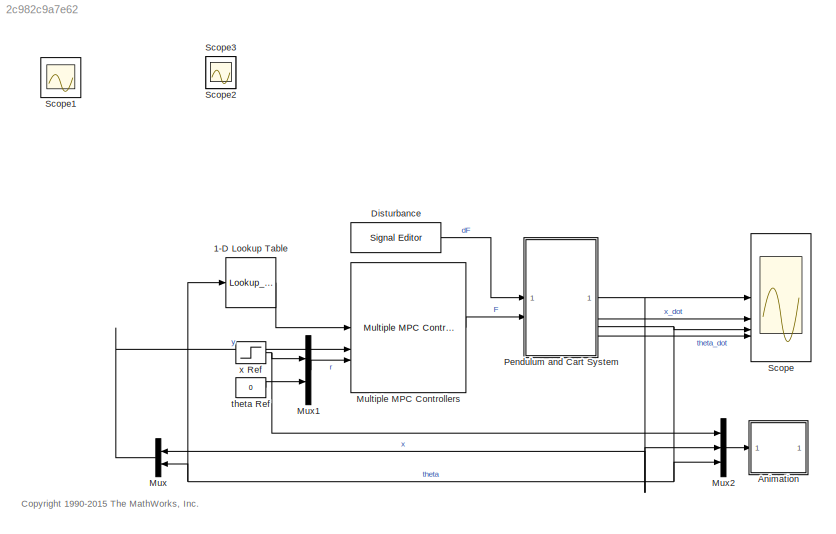
MODEL slx_2c982c9a7e62
KIND model
CONFIG AbsTol = auto
CONFIG EnableMultiTasking = on
CONFIG FixedStep = auto
CONFIG MaxStep = 1e-3
CONFIG MinStep = auto
CONFIG PreLoadFcn = % Model parameters\nmCart = 1;\nmPend = 1;\ng = 9.81;\nL = 0.5; \nKd = 10;\n\n% Initial Conditions\ntheta0 = 0;
CONFIG RelTol = 1e-3
CONFIG SampleTimeConstraint = Unconstrained
CONFIG SolverName = ode15s
CONFIG StartTime = 0.0
CONFIG StopTime = 30
BLOCK [Lookup_n-D] 1-D Lookup Table
  BreakpointsForDimension1 = angles
  InputPortMap = u0
  InternalRulePriority = Speed
  InterpMethod = Nearest
  NumberOfTableDimensions = 1
  RndMeth = Simplest
  Table = 1:length(angles)
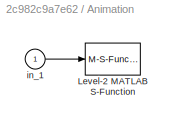
BLOCK [SubSystem] Animation
BLOCK [M-S-Function] Animation/Level-2 MATLAB S-Function
  FunctionName = pendcartAnimation
  Parameters = RefBlock
BLOCK [Inport] Animation/in_1
BLOCK [Reference] Disturbance  REF=SignalEditorBlockLib/Signal Editor
  LibrarySourceBlock = simulink/Sources/Signal Editor
  SourceBlock = SignalEditorBlockLib/Signal Editor
  SourceType = SignalEditor
  UserDataPersistent = on
BLOCK [Reference] Multiple MPC Controllers  REF=mpclib/Multiple MPC Controllers  (lib defined in mdl_ae329e0e0455)
  SourceBlock = mpclib/Multiple MPC Controllers
  SourceType = Multiple MPC
BLOCK [Mux] Mux
  DisplayOption = bar
  Inputs = 2
  NameLocation = top
BLOCK [Mux] Mux1
  DisplayOption = bar
  Inputs = 2
BLOCK [Mux] Mux2
  DisplayOption = bar
  Inputs = 3
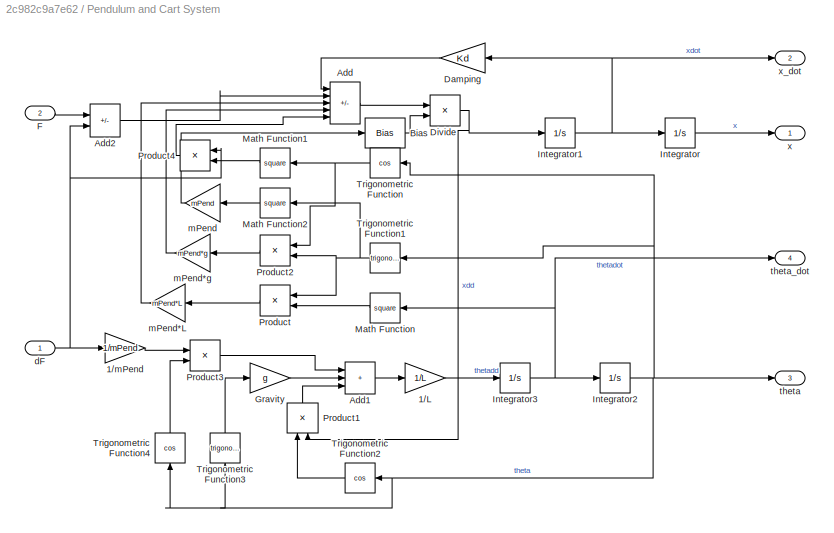
BLOCK [SubSystem] Pendulum and Cart System
BLOCK [Gain] Pendulum and Cart System/1//L
  Gain = 1/L
BLOCK [Gain] Pendulum and Cart System/1//mPend
  Gain = 1/mPend
  NameLocation = top
BLOCK [Sum] Pendulum and Cart System/Add
  IconShape = rectangular
  Inputs = -+-++
BLOCK [Sum] Pendulum and Cart System/Add1
  IconShape = rectangular
  Inputs = +++
BLOCK [Sum] Pendulum and Cart System/Add2
  IconShape = rectangular
  Inputs = +-
BLOCK [Bias] Pendulum and Cart System/Bias
  Bias = mCart
  SaturateOnIntegerOverflow = off
BLOCK [Gain] Pendulum and Cart System/Damping
  Gain = Kd
  NameLocation = top
BLOCK [Product] Pendulum and Cart System/Divide
  Inputs = */
BLOCK [Inport] Pendulum and Cart System/F
  Port = 2
BLOCK [Gain] Pendulum and Cart System/Gravity
  Gain = g
BLOCK [Integrator] Pendulum and Cart System/Integrator
  ContinuousStateAttributes = 'x'
BLOCK [Integrator] Pendulum and Cart System/Integrator1
  ContinuousStateAttributes = 'xdot'
BLOCK [Integrator] Pendulum and Cart System/Integrator2
  ContinuousStateAttributes = 'theta'
BLOCK [Integrator] Pendulum and Cart System/Integrator3
  ContinuousStateAttributes = 'thetadot'
BLOCK [Math] Pendulum and Cart System/Math Function
  Operator = square
  SignedPower = on
BLOCK [Math] Pendulum and Cart System/Math Function1
  Operator = square
  SignedPower = on
BLOCK [Math] Pendulum and Cart System/Math Function2
  Operator = square
  SignedPower = on
BLOCK [Product] Pendulum and Cart System/Product
  NameLocation = top
BLOCK [Product] Pendulum and Cart System/Product1
  NameLocation = right
BLOCK [Product] Pendulum and Cart System/Product2
  NameLocation = top
BLOCK [Product] Pendulum and Cart System/Product3
BLOCK [Product] Pendulum and Cart System/Product4
  NameLocation = top
BLOCK [Trigonometry] Pendulum and Cart System/Trigonometric Function
  NameLocation = top
  Operator = cos
BLOCK [Trigonometry] Pendulum and Cart System/Trigonometric Function1
  NameLocation = top
BLOCK [Trigonometry] Pendulum and Cart System/Trigonometric Function2
  NameLocation = top
  Operator = cos
BLOCK [Trigonometry] Pendulum and Cart System/Trigonometric Function3
  NameLocation = right
BLOCK [Trigonometry] Pendulum and Cart System/Trigonometric Function4
  NameLocation = right
  Operator = cos
BLOCK [Inport] Pendulum and Cart System/dF
BLOCK [Gain] Pendulum and Cart System/mPend
  Gain = mPend
BLOCK [Gain] Pendulum and Cart System/mPend*L
  Gain = mPend*L
BLOCK [Gain] Pendulum and Cart System/mPend*g
  Gain = mPend*g
BLOCK [Outport] Pendulum and Cart System/theta
  Port = 3
  VectorParamsAs1DForOutWhenUnconnected = off
BLOCK [Outport] Pendulum and Cart System/theta_dot
  Port = 4
  VectorParamsAs1DForOutWhenUnconnected = off
BLOCK [Outport] Pendulum and Cart System/x
  VectorParamsAs1DForOutWhenUnconnected = off
BLOCK [Outport] Pendulum and Cart System/x_dot
  Port = 2
  VectorParamsAs1DForOutWhenUnconnected = off
BLOCK [Scope] Scope
  Floating = off
  NameLocation = top
  NumInputPorts = 4
  ScopeSpecificationString = Simulink.scopes.TimeScopeBlockCfg('CurrentConfiguration', extmgr.ConfigurationSet(extmgr.Configuration('Core','General UI',true),extmgr.Configuration('Core','Source UI',true),extmgr.Configuration('Sources','WiredSimulink',true,'DataLoggingSaveFormat','StructureWithTime','DataLoggingDecimation','1','DataLoggingDecimateData',true),extmgr.Configuration('Visuals','Time Domain',true,'SerializedDisplays...<+3598ch>
BLOCK [Scope] Scope1
  Floating = off
  IOType = viewer
  NumInputPorts = 1
  ScopeSpecificationString = Simulink.scopes.TimeScopeBlockCfg('CurrentConfiguration', extmgr.ConfigurationSet(extmgr.Configuration('Core','General UI',true),extmgr.Configuration('Core','Source UI',true),extmgr.Configuration('Sources','WiredSimulink',true,'DataLoggingMaxPoints','7500','DataLoggingLimitDataPoints',true,'DataLoggingSaveFormat','Array','DataLoggingDecimation','1','DataLoggingDecimateData',true),extmgr.Configurat...<+1709ch>
BLOCK [Scope] Scope2
  Floating = off
  IOType = viewer
  NumInputPorts = 1
  ScopeSpecificationString = Simulink.scopes.TimeScopeBlockCfg('CurrentConfiguration', extmgr.ConfigurationSet(extmgr.Configuration('Core','General UI',true),extmgr.Configuration('Core','Source UI',true),extmgr.Configuration('Sources','WiredSimulink',true,'DataLoggingVariableName','ScopeData1'),extmgr.Configuration('Visuals','Time Domain',true,'SerializedDisplays',{struct('MinYLimReal','-125.00000','MaxYLimReal','125.00000','...<+1447ch>
BLOCK [Scope] Scope3
  Floating = off
  IOType = viewer
  NumInputPorts = 1
  ScopeSpecificationString = Simulink.scopes.TimeScopeBlockCfg('CurrentConfiguration', extmgr.ConfigurationSet(extmgr.Configuration('Core','General UI',true),extmgr.Configuration('Core','Source UI',true),extmgr.Configuration('Sources','WiredSimulink',true,'DataLoggingVariableName','ScopeData2'),extmgr.Configuration('Visuals','Time Domain',true,'SerializedDisplays',{struct('MinYLimReal','0.875','MaxYLimReal','2.125','YLabelRea...<+1430ch>
BLOCK [Constant] theta Ref
  Value = 0
BLOCK [Step] x Ref
  After = 15
  SampleTime = 0
ANNOTATION (root): <copyright redacted>
LINE 1-D Lookup Table:1 -> Multiple MPC Controllers:1
LINE Animation/in_1:1 -> Animation/Level-2 MATLAB S-Function:1
LINE Disturbance:1 -> Pendulum and Cart System:1
LINE Multiple MPC Controllers:1 -> Pendulum and Cart System:2
LINE Mux1:1 -> Multiple MPC Controllers:3
LINE Mux2:1 -> Animation:1
LINE Mux:1 -> Multiple MPC Controllers:2
LINE Pendulum and Cart System/1//L:1 -> Pendulum and Cart System/Integrator3:1
LINE Pendulum and Cart System/1//mPend:1 -> Pendulum and Cart System/Product3:1
LINE Pendulum and Cart System/Add1:1 -> Pendulum and Cart System/1//L:1
LINE Pendulum and Cart System/Add2:1 -> Pendulum and Cart System/Add:2
LINE Pendulum and Cart System/Add:1 -> Pendulum and Cart System/Divide:1
LINE Pendulum and Cart System/Bias:1 -> Pendulum and Cart System/Divide:2
LINE Pendulum and Cart System/Damping:1 -> Pendulum and Cart System/Add:1
NET Pendulum and Cart System/Divide:1 -> Pendulum and Cart System/Integrator1:1, Pendulum and Cart System/Product1:2
LINE Pendulum and Cart System/F:1 -> Pendulum and Cart System/Add2:1
LINE Pendulum and Cart System/Gravity:1 -> Pendulum and Cart System/Add1:2
NET Pendulum and Cart System/Integrator1:1 -> Pendulum and Cart System/Damping:1, Pendulum and Cart System/Integrator:1, Pendulum and Cart System/x_dot:1
NET Pendulum and Cart System/Integrator2:1 -> Pendulum and Cart System/Trigonometric Function1:1, Pendulum and Cart System/Trigonometric Function2:1, Pendulum and Cart System/Trigonometric Function3:1, Pendulum and Cart System/Trigonometric Function4:1, Pendulum and Cart System/Trigonometric Function:1, Pendulum and Cart System/theta:1
NET Pendulum and Cart System/Integrator3:1 -> Pendulum and Cart System/Integrator2:1, Pendulum and Cart System/Math Function:1, Pendulum and Cart System/theta_dot:1
LINE Pendulum and Cart System/Integrator:1 -> Pendulum and Cart System/x:1
LINE Pendulum and Cart System/Math Function1:1 -> Pendulum and Cart System/Product4:2
LINE Pendulum and Cart System/Math Function2:1 -> Pendulum and Cart System/mPend:1
LINE Pendulum and Cart System/Math Function:1 -> Pendulum and Cart System/Product:2
LINE Pendulum and Cart System/Product1:1 -> Pendulum and Cart System/Add1:3
LINE Pendulum and Cart System/Product2:1 -> Pendulum and Cart System/mPend*g:1
LINE Pendulum and Cart System/Product3:1 -> Pendulum and Cart System/Add1:1
LINE Pendulum and Cart System/Product4:1 -> Pendulum and Cart System/Add:5
LINE Pendulum and Cart System/Product:1 -> Pendulum and Cart System/mPend*L:1
NET Pendulum and Cart System/Trigonometric Function1:1 -> Pendulum and Cart System/Math Function2:1, Pendulum and Cart System/Product2:2, Pendulum and Cart System/Product:1
LINE Pendulum and Cart System/Trigonometric Function2:1 -> Pendulum and Cart System/Product1:1
LINE Pendulum and Cart System/Trigonometric Function3:1 -> Pendulum and Cart System/Gravity:1
LINE Pendulum and Cart System/Trigonometric Function4:1 -> Pendulum and Cart System/Product3:2
NET Pendulum and Cart System/Trigonometric Function:1 -> Pendulum and Cart System/Math Function1:1, Pendulum and Cart System/Product2:1
NET Pendulum and Cart System/dF:1 -> Pendulum and Cart System/1//mPend:1, Pendulum and Cart System/Add2:2, Pendulum and Cart System/Product4:1
LINE Pendulum and Cart System/mPend*L:1 -> Pendulum and Cart System/Add:3
LINE Pendulum and Cart System/mPend*g:1 -> Pendulum and Cart System/Add:4
LINE Pendulum and Cart System/mPend:1 -> Pendulum and Cart System/Bias:1
NET Pendulum and Cart System:1 -> Mux2:2, Mux:1, Scope:1
LINE Pendulum and Cart System:2 -> Scope:2
NET Pendulum and Cart System:3 -> 1-D Lookup Table:1, Mux2:3, Mux:2, Scope:3
LINE Pendulum and Cart System:4 -> Scope:4
LINE theta Ref:1 -> Mux1:2
NET x Ref:1 -> Mux1:1, Mux2:1
note: NET lines group one-source signal fan-out (src -> all destinations, sorted); 1:1 wires keep LINE
